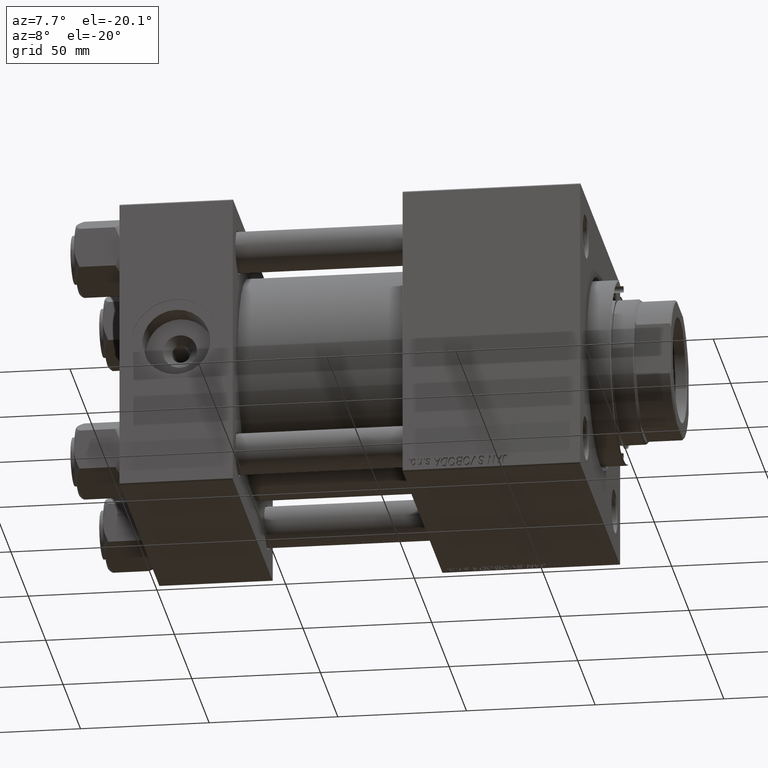
[diagram: clean part render]
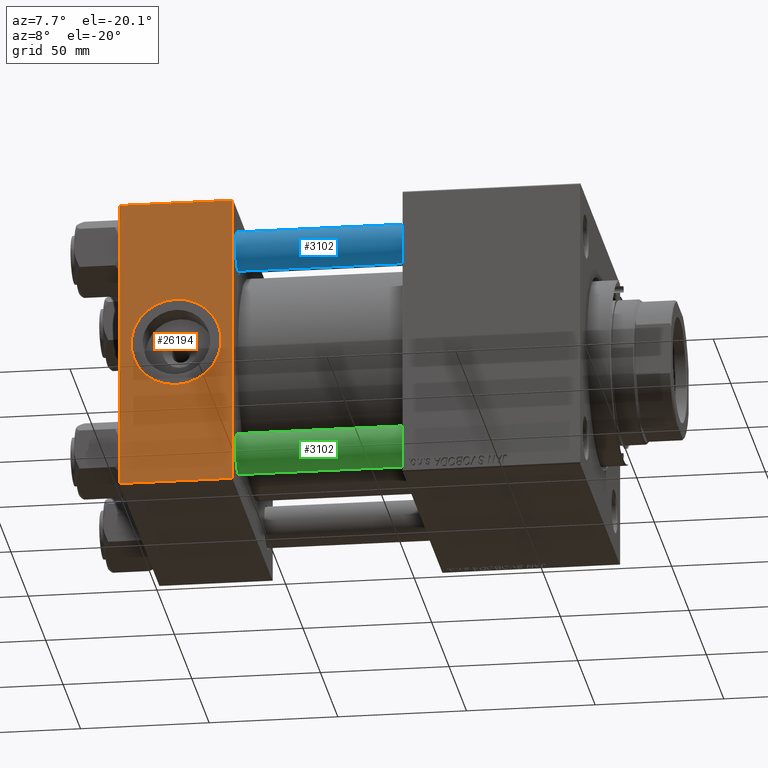
[diagram: same view with three faces highlighted in distinct colors, each labeled with its STEP entity id]
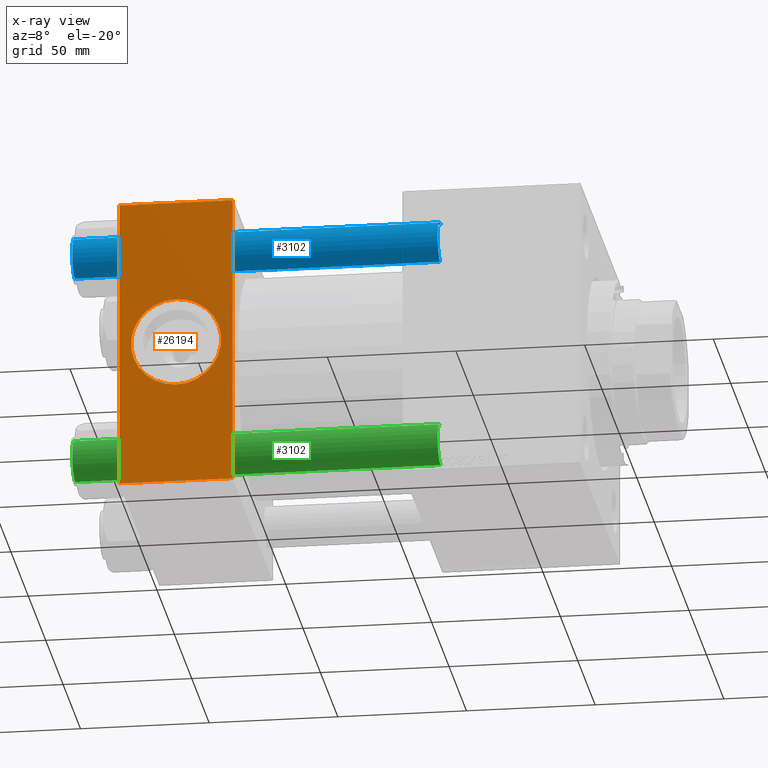
[diagram: x-ray of the same camera — body ghosted, the three highlighted faces saturated]
A machine part, auxiliary view with three faces highlighted in distinct colors.
The next image is the same camera in x-ray (body ghosted, the three faces saturated) — at least one of them is partly hidden behind the body in this view.
Their STEP definitions:

[orange] entity #26194 — the highlighted planar face has unit normal (0, 1, 0).
#441 = DIRECTION ( 'NONE',  ( 0.000000000000000000, -1.000000000000000000, -8.673617379884036705E-17 ) ) ;
#471 = ORIENTED_EDGE ( 'NONE', *, *, #19414, .F. ) ;
#913 = DIRECTION ( 'NONE',  ( 0.000000000000000000, -0.000000000000000000, 1.000000000000000000 ) ) ;
#1626 = EDGE_LOOP ( 'NONE', ( #36629, #471 ) ) ;
#2106 = ORIENTED_EDGE ( 'NONE', *, *, #45591, .T. ) ;
#3291 = DIRECTION ( 'NONE',  ( 1.000000000000000000, 0.000000000000000000, 0.000000000000000000 ) ) ;
#5391 = LINE ( 'NONE', #48815, #9684 ) ;
#5765 = CARTESIAN_POINT ( 'NONE',  ( 0.000000000000000000, -57.50000000000000711, -57.00000000000000711 ) ) ;
#5967 = CIRCLE ( 'NONE', #13329, 17.50000000000000000 ) ;
#6256 = EDGE_CURVE ( 'NONE', #49396, #48460, #5391, .T. ) ;
#9387 = FACE_BOUND ( 'NONE', #1626, .T. ) ;
#9684 = VECTOR ( 'NONE', #44454, 1000.000000000000000 ) ;
#11419 = VERTEX_POINT ( 'NONE', #31581 ) ;
#11558 = VECTOR ( 'NONE', #3291, 1000.000000000000000 ) ;
#12133 = CARTESIAN_POINT ( 'NONE',  ( 44.00000000000000000, -57.50000000000000711, 57.49999999999999289 ) ) ;
#12266 = DIRECTION ( 'NONE',  ( 0.000000000000000000, -1.000000000000000000, -8.673617379884036705E-17 ) ) ;
#12644 = EDGE_CURVE ( 'NONE', #48182, #11419, #13110, .T. ) ;
#13110 = CIRCLE ( 'NONE', #38549, 17.50000000000000000 ) ;
#13329 = AXIS2_PLACEMENT_3D ( 'NONE', #35639, #441, #36138 ) ;
#16119 = CARTESIAN_POINT ( 'NONE',  ( 22.00000000000000000, -57.50000000000000711, 0.000000000000000000 ) ) ;
#16500 = ORIENTED_EDGE ( 'NONE', *, *, #6256, .T. ) ;
#19414 = EDGE_CURVE ( 'NONE', #11419, #48182, #5967, .T. ) ;
#20406 = DIRECTION ( 'NONE',  ( -0.000000000000000000, 1.000000000000000000, 0.000000000000000000 ) ) ;
#23629 = LINE ( 'NONE', #39321, #29613 ) ;
#25045 = FACE_OUTER_BOUND ( 'NONE', #36367, .T. ) ;
#25275 = CARTESIAN_POINT ( 'NONE',  ( 44.00000000000000000, -57.50000000000000711, 57.00000000000000711 ) ) ;
#26194 = ADVANCED_FACE ( 'NONE', ( #9387, #25045 ), #43816, .F. ) ;
#26669 = CARTESIAN_POINT ( 'NONE',  ( 44.00000000000000000, -57.50000000000000711, -57.00000000000000711 ) ) ;
#27800 = DIRECTION ( 'NONE',  ( 0.000000000000000000, 0.000000000000000000, -1.000000000000000000 ) ) ;
#29613 = VECTOR ( 'NONE', #35473, 1000.000000000000000 ) ;
#31581 = CARTESIAN_POINT ( 'NONE',  ( 22.00000000000000355, -57.50000000000000711, 17.50000000000000000 ) ) ;
#31908 = ORIENTED_EDGE ( 'NONE', *, *, #43220, .F. ) ;
#33102 = AXIS2_PLACEMENT_3D ( 'NONE', #40468, #20406, #913 ) ;
#34764 = CARTESIAN_POINT ( 'NONE',  ( 0.000000000000000000, -57.50000000000000711, 57.00000000000000711 ) ) ;
#35473 = DIRECTION ( 'NONE',  ( -1.000000000000000000, 0.000000000000000000, 0.000000000000000000 ) ) ;
#35639 = CARTESIAN_POINT ( 'NONE',  ( 22.00000000000000000, -57.50000000000000711, 0.000000000000000000 ) ) ;
#36138 = DIRECTION ( 'NONE',  ( 0.000000000000000000, 0.000000000000000000, -1.000000000000000000 ) ) ;
#36367 = EDGE_LOOP ( 'NONE', ( #16500, #37817, #31908, #2106 ) ) ;
#36629 = ORIENTED_EDGE ( 'NONE', *, *, #12644, .F. ) ;
#37817 = ORIENTED_EDGE ( 'NONE', *, *, #44548, .T. ) ;
#37986 = LINE ( 'NONE', #26669, #11558 ) ;
#38549 = AXIS2_PLACEMENT_3D ( 'NONE', #16119, #12266, #40017 ) ;
#39321 = CARTESIAN_POINT ( 'NONE',  ( 44.00000000000000000, -57.50000000000000711, 57.00000000000000711 ) ) ;
#40017 = DIRECTION ( 'NONE',  ( 0.000000000000000000, 0.000000000000000000, -1.000000000000000000 ) ) ;
#40468 = CARTESIAN_POINT ( 'NONE',  ( 44.00000000000000000, -57.50000000000000711, 57.49999999999999289 ) ) ;
#41034 = VECTOR ( 'NONE', #27800, 1000.000000000000000 ) ;
#42889 = VERTEX_POINT ( 'NONE', #25275 ) ;
#43220 = EDGE_CURVE ( 'NONE', #42889, #49409, #47335, .T. ) ;
#43816 = PLANE ( 'NONE',  #33102 ) ;
#44218 = CARTESIAN_POINT ( 'NONE',  ( 44.00000000000000000, -57.50000000000000711, -57.00000000000000711 ) ) ;
#44454 = DIRECTION ( 'NONE',  ( 0.000000000000000000, 0.000000000000000000, -1.000000000000000000 ) ) ;
#44548 = EDGE_CURVE ( 'NONE', #48460, #49409, #37986, .T. ) ;
#45591 = EDGE_CURVE ( 'NONE', #42889, #49396, #23629, .T. ) ;
#47335 = LINE ( 'NONE', #12133, #41034 ) ;
#48182 = VERTEX_POINT ( 'NONE', #49043 ) ;
#48460 = VERTEX_POINT ( 'NONE', #5765 ) ;
#48815 = CARTESIAN_POINT ( 'NONE',  ( 0.000000000000000000, -57.50000000000000711, 57.49999999999999289 ) ) ;
#49043 = CARTESIAN_POINT ( 'NONE',  ( 22.00000000000000000, -57.50000000000000711, -17.50000000000000000 ) ) ;
#49396 = VERTEX_POINT ( 'NONE', #34764 ) ;
#49409 = VERTEX_POINT ( 'NONE', #44218 ) ;

[blue] entity #3102 — the highlighted cylindrical surface (edge-blend (fillet) strip) has radius 8 mm, axis along (1, 0, -0).
#163 = VECTOR ( 'NONE', #31668, 1000.000000000000000 ) ;
#1194 = DIRECTION ( 'NONE',  ( 1.000000000000000000, 0.000000000000000000, 0.000000000000000000 ) ) ;
#3102 = ADVANCED_FACE ( 'NONE', ( #23330 ), #38513, .T. ) ;
#3307 = DIRECTION ( 'NONE',  ( -1.000000000000000000, 0.000000000000000000, 0.000000000000000000 ) ) ;
#3809 = CARTESIAN_POINT ( 'NONE',  ( 0.000000000000000000, 0.000000000000000000, 143.0000000000000000 ) ) ;
#4644 = AXIS2_PLACEMENT_3D ( 'NONE', #3809, #26939, #3307 ) ;
#5198 = VERTEX_POINT ( 'NONE', #28276 ) ;
#5676 = CARTESIAN_POINT ( 'NONE',  ( 0.000000000000000000, 0.000000000000000000, 0.4999999999999726885 ) ) ;
#8496 = AXIS2_PLACEMENT_3D ( 'NONE', #19932, #28169, #1194 ) ;
#9953 = LINE ( 'NONE', #25619, #19802 ) ;
#12465 = ORIENTED_EDGE ( 'NONE', *, *, #46150, .T. ) ;
#16811 = ORIENTED_EDGE ( 'NONE', *, *, #18299, .F. ) ;
#18299 = EDGE_CURVE ( 'NONE', #32374, #5198, #9953, .T. ) ;
#19099 = CARTESIAN_POINT ( 'NONE',  ( 8.000000000000000000, 9.797174393178825657E-16, 143.0000000000000000 ) ) ;
#19802 = VECTOR ( 'NONE', #34347, 1000.000000000000000 ) ;
#19932 = CARTESIAN_POINT ( 'NONE',  ( 0.000000000000000000, 0.000000000000000000, 142.4999999999999716 ) ) ;
#20472 = AXIS2_PLACEMENT_3D ( 'NONE', #5676, #37029, #44734 ) ;
#20794 = CIRCLE ( 'NONE', #8496, 8.000000000000000000 ) ;
#22903 = EDGE_CURVE ( 'NONE', #32374, #50205, #20794, .T. ) ;
#23330 = FACE_OUTER_BOUND ( 'NONE', #29082, .T. ) ;
#24179 = CARTESIAN_POINT ( 'NONE',  ( -8.000000000000000000, 0.000000000000000000, 142.4999999999999716 ) ) ;
#25619 = CARTESIAN_POINT ( 'NONE',  ( -8.000000000000000000, 0.000000000000000000, 143.0000000000000000 ) ) ;
#25881 = ORIENTED_EDGE ( 'NONE', *, *, #22903, .T. ) ;
#26939 = DIRECTION ( 'NONE',  ( -0.000000000000000000, -0.000000000000000000, -1.000000000000000000 ) ) ;
#27067 = CIRCLE ( 'NONE', #20472, 8.000000000000000000 ) ;
#28169 = DIRECTION ( 'NONE',  ( 0.000000000000000000, 0.000000000000000000, -1.000000000000000000 ) ) ;
#28276 = CARTESIAN_POINT ( 'NONE',  ( -8.000000000000000000, 0.000000000000000000, 0.4999999999999726885 ) ) ;
#29082 = EDGE_LOOP ( 'NONE', ( #25881, #12465, #46018, #16811 ) ) ;
#30919 = LINE ( 'NONE', #19099, #163 ) ;
#31668 = DIRECTION ( 'NONE',  ( -0.000000000000000000, -0.000000000000000000, -1.000000000000000000 ) ) ;
#31955 = CARTESIAN_POINT ( 'NONE',  ( 8.000000000000000000, 9.797174393178825657E-16, 0.4999999999999726885 ) ) ;
#32374 = VERTEX_POINT ( 'NONE', #24179 ) ;
#33173 = CARTESIAN_POINT ( 'NONE',  ( 8.000000000000000000, 9.797174393178825657E-16, 142.4999999999999716 ) ) ;
#34347 = DIRECTION ( 'NONE',  ( -0.000000000000000000, -0.000000000000000000, -1.000000000000000000 ) ) ;
#37029 = DIRECTION ( 'NONE',  ( -0.000000000000000000, -0.000000000000000000, 1.000000000000000000 ) ) ;
#38513 = CYLINDRICAL_SURFACE ( 'NONE', #4644, 8.000000000000000000 ) ;
#42077 = EDGE_CURVE ( 'NONE', #48945, #5198, #27067, .T. ) ;
#44734 = DIRECTION ( 'NONE',  ( 1.000000000000000000, 0.000000000000000000, 0.000000000000000000 ) ) ;
#46018 = ORIENTED_EDGE ( 'NONE', *, *, #42077, .T. ) ;
#46150 = EDGE_CURVE ( 'NONE', #50205, #48945, #30919, .T. ) ;
#48945 = VERTEX_POINT ( 'NONE', #31955 ) ;
#50205 = VERTEX_POINT ( 'NONE', #33173 ) ;

[green] entity #3102 — the highlighted cylindrical surface (edge-blend (fillet) strip) has radius 8 mm, axis along (-1, -0, -0).
#163 = VECTOR ( 'NONE', #31668, 1000.000000000000000 ) ;
#1194 = DIRECTION ( 'NONE',  ( 1.000000000000000000, 0.000000000000000000, 0.000000000000000000 ) ) ;
#3102 = ADVANCED_FACE ( 'NONE', ( #23330 ), #38513, .T. ) ;
#3307 = DIRECTION ( 'NONE',  ( -1.000000000000000000, 0.000000000000000000, 0.000000000000000000 ) ) ;
#3809 = CARTESIAN_POINT ( 'NONE',  ( 0.000000000000000000, 0.000000000000000000, 143.0000000000000000 ) ) ;
#4644 = AXIS2_PLACEMENT_3D ( 'NONE', #3809, #26939, #3307 ) ;
#5198 = VERTEX_POINT ( 'NONE', #28276 ) ;
#5676 = CARTESIAN_POINT ( 'NONE',  ( 0.000000000000000000, 0.000000000000000000, 0.4999999999999726885 ) ) ;
#8496 = AXIS2_PLACEMENT_3D ( 'NONE', #19932, #28169, #1194 ) ;
#9953 = LINE ( 'NONE', #25619, #19802 ) ;
#12465 = ORIENTED_EDGE ( 'NONE', *, *, #46150, .T. ) ;
#16811 = ORIENTED_EDGE ( 'NONE', *, *, #18299, .F. ) ;
#18299 = EDGE_CURVE ( 'NONE', #32374, #5198, #9953, .T. ) ;
#19099 = CARTESIAN_POINT ( 'NONE',  ( 8.000000000000000000, 9.797174393178825657E-16, 143.0000000000000000 ) ) ;
#19802 = VECTOR ( 'NONE', #34347, 1000.000000000000000 ) ;
#19932 = CARTESIAN_POINT ( 'NONE',  ( 0.000000000000000000, 0.000000000000000000, 142.4999999999999716 ) ) ;
#20472 = AXIS2_PLACEMENT_3D ( 'NONE', #5676, #37029, #44734 ) ;
#20794 = CIRCLE ( 'NONE', #8496, 8.000000000000000000 ) ;
#22903 = EDGE_CURVE ( 'NONE', #32374, #50205, #20794, .T. ) ;
#23330 = FACE_OUTER_BOUND ( 'NONE', #29082, .T. ) ;
#24179 = CARTESIAN_POINT ( 'NONE',  ( -8.000000000000000000, 0.000000000000000000, 142.4999999999999716 ) ) ;
#25619 = CARTESIAN_POINT ( 'NONE',  ( -8.000000000000000000, 0.000000000000000000, 143.0000000000000000 ) ) ;
#25881 = ORIENTED_EDGE ( 'NONE', *, *, #22903, .T. ) ;
#26939 = DIRECTION ( 'NONE',  ( -0.000000000000000000, -0.000000000000000000, -1.000000000000000000 ) ) ;
#27067 = CIRCLE ( 'NONE', #20472, 8.000000000000000000 ) ;
#28169 = DIRECTION ( 'NONE',  ( 0.000000000000000000, 0.000000000000000000, -1.000000000000000000 ) ) ;
#28276 = CARTESIAN_POINT ( 'NONE',  ( -8.000000000000000000, 0.000000000000000000, 0.4999999999999726885 ) ) ;
#29082 = EDGE_LOOP ( 'NONE', ( #25881, #12465, #46018, #16811 ) ) ;
#30919 = LINE ( 'NONE', #19099, #163 ) ;
#31668 = DIRECTION ( 'NONE',  ( -0.000000000000000000, -0.000000000000000000, -1.000000000000000000 ) ) ;
#31955 = CARTESIAN_POINT ( 'NONE',  ( 8.000000000000000000, 9.797174393178825657E-16, 0.4999999999999726885 ) ) ;
#32374 = VERTEX_POINT ( 'NONE', #24179 ) ;
#33173 = CARTESIAN_POINT ( 'NONE',  ( 8.000000000000000000, 9.797174393178825657E-16, 142.4999999999999716 ) ) ;
#34347 = DIRECTION ( 'NONE',  ( -0.000000000000000000, -0.000000000000000000, -1.000000000000000000 ) ) ;
#37029 = DIRECTION ( 'NONE',  ( -0.000000000000000000, -0.000000000000000000, 1.000000000000000000 ) ) ;
#38513 = CYLINDRICAL_SURFACE ( 'NONE', #4644, 8.000000000000000000 ) ;
#42077 = EDGE_CURVE ( 'NONE', #48945, #5198, #27067, .T. ) ;
#44734 = DIRECTION ( 'NONE',  ( 1.000000000000000000, 0.000000000000000000, 0.000000000000000000 ) ) ;
#46018 = ORIENTED_EDGE ( 'NONE', *, *, #42077, .T. ) ;
#46150 = EDGE_CURVE ( 'NONE', #50205, #48945, #30919, .T. ) ;
#48945 = VERTEX_POINT ( 'NONE', #31955 ) ;
#50205 = VERTEX_POINT ( 'NONE', #33173 ) ;